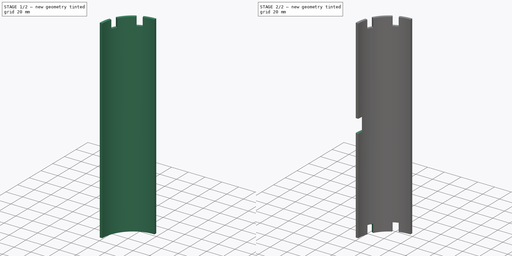
[diagram: build sequence overview — one tinted view per stage of 2, left to right]
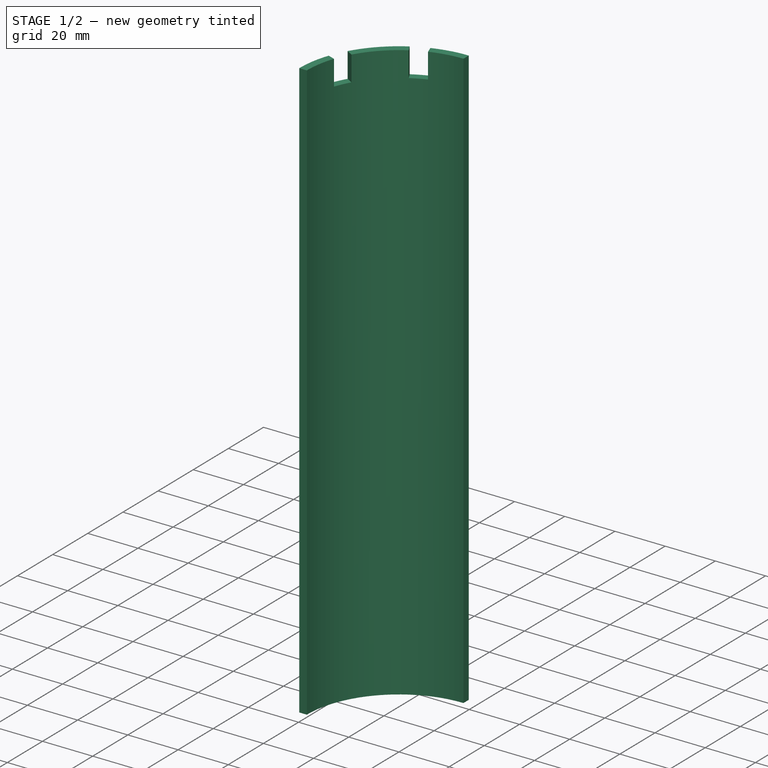
[diagram: stage 1 of 2 — iso view after this stage's code; geometry added in this stage tinted green]
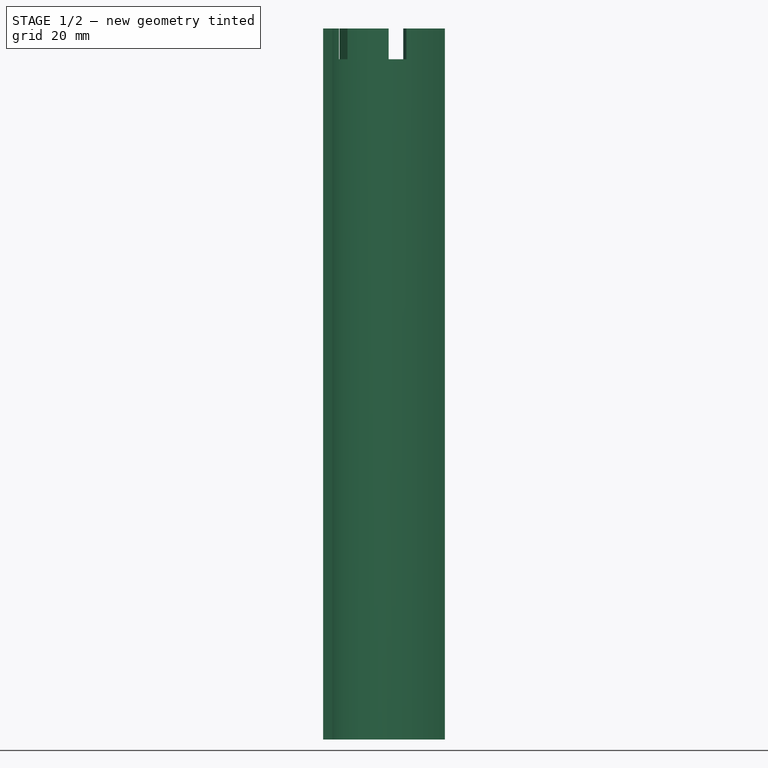
[diagram: stage 1 of 2 — front view after this stage's code; geometry added in this stage tinted green]
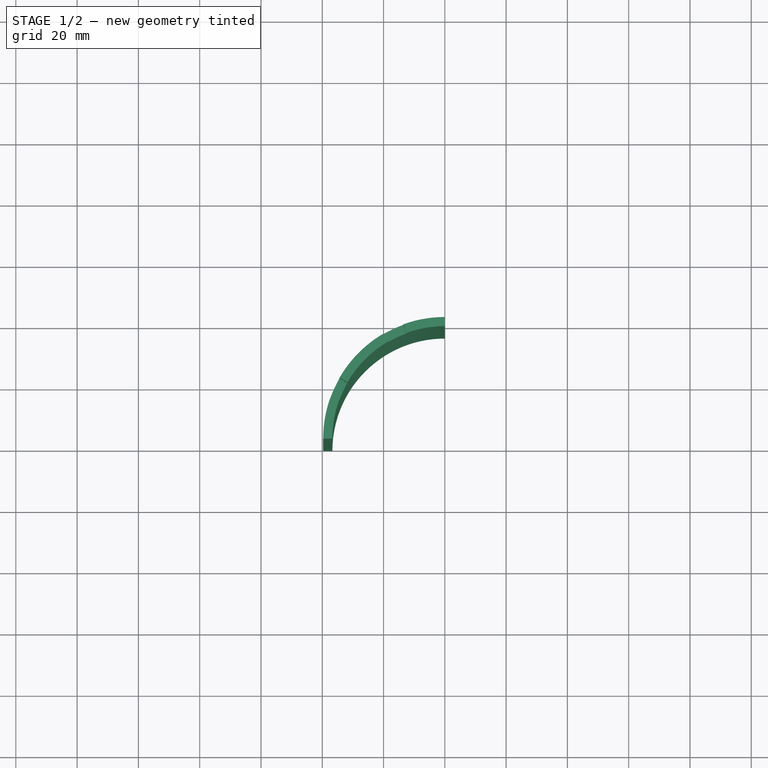
[diagram: stage 1 of 2 — top view after this stage's code; geometry added in this stage tinted green]
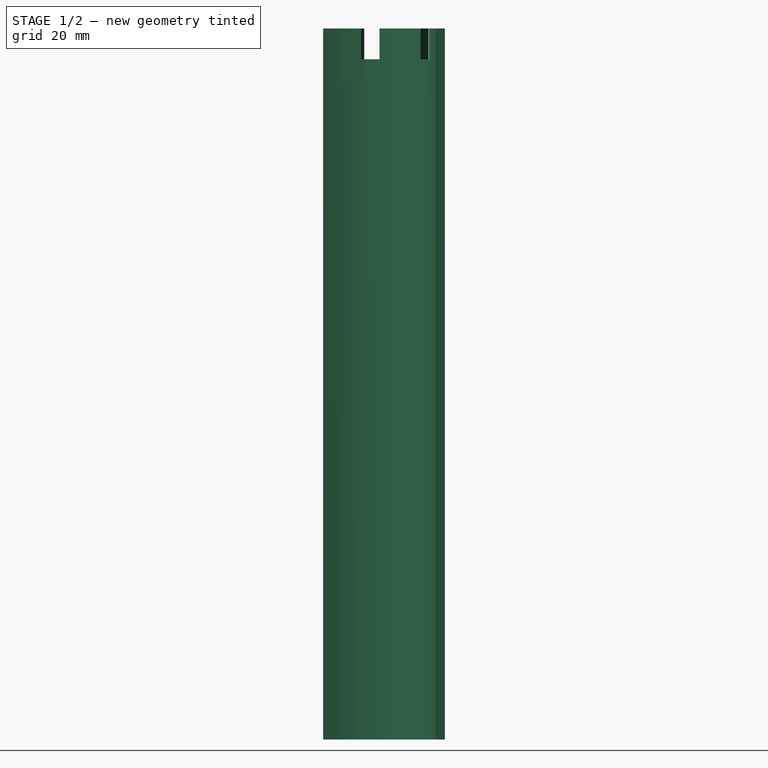
[diagram: stage 1 of 2 — right view after this stage's code; geometry added in this stage tinted green]
FCSTD DOCUMENT  (FreeCAD 1.0R39109 (Git))
Label: cansat_parte1
License: All rights reserved
LicenseURL: https://en.wikipedia.org/wiki/All_rights_reserved
objects: Sketcher::SketchObject×4, PartDesign::Pocket×3, PartDesign::Pad×1, PartDesign::Body×1
note: 21 computed .brp shape members not serialized (recipe doc carries the construction recipe); baked Part::Feature solids carry a one-line shape summary decoded from their .brp

FEATURE [Sketcher::SketchObject] Sketch
  ArcFitTolerance = 1e-06
  AttachmentSupport = -> [XY_Plane]
  FullyConstrained = false
  MakeInternals = false
  MapMode = 5
  sketch-geometry (4):
    g0: ArcOfCircle CenterX=0 CenterY=0 CenterZ=0 NormalX=0 NormalY=0 NormalZ=1 AngleXU=0 Radius=36.7 StartAngle=1.5708 EndAngle=3.14159
    g1: ArcOfCircle CenterX=0 CenterY=0 CenterZ=0 NormalX=0 NormalY=0 NormalZ=1 AngleXU=0 Radius=39.7 StartAngle=1.5708 EndAngle=3.14159
    g2: LineSegment StartX=2.2e-15 StartY=36.7 StartZ=0 EndX=2.4e-15 EndY=39.7 EndZ=0
    g3: LineSegment StartX=-39.7 StartY=4.9e-15 StartZ=0 EndX=-36.7 EndY=4.5e-15 EndZ=0
  constraints (6):
    c: Diameter(g0) = 73.4
    c: Diameter(g1) = 79.4
    c: Coincident(g0,g3)
    c: Coincident(g0,g2)
    c: Coincident(g1,g3)
    c: Coincident(g1,g2)
FEATURE [PartDesign::Pad] Pad
  Direction = (0,0,1)
  Length = 232
  Length2 = 10
  Profile = -> Sketch
  ReferenceAxis = -> Sketch [N_Axis]
  Refine = true
  Suppressed = false
  Type = 0
FEATURE [Sketcher::SketchObject] Sketch001
  ArcFitTolerance = 1e-06
  AttachmentSupport = -> [Pad]
  FullyConstrained = true
  MakeInternals = false
  MapMode = 5
  Placement = pos=(0,0,232) rot=(0,0,1;0rad)
  sketch-geometry (8):
    g0: LineSegment StartX=-34.5462 StartY=12.3874 StartZ=0 EndX=-37.3653 EndY=13.4135 EndZ=0
    g1: LineSegment StartX=-34.3734 StartY=19.8635 StartZ=0 EndX=-31.7753 EndY=18.3635 EndZ=0
    g2: ArcOfCircle CenterX=0 CenterY=0 CenterZ=0 NormalX=0 NormalY=0 NormalZ=1 AngleXU=0 Radius=39.7 StartAngle=2.6176 EndAngle=2.79694
    g3: ArcOfCircle CenterX=0 CenterY=0 CenterZ=0 NormalX=0 NormalY=0 NormalZ=1 AngleXU=0 Radius=36.7 StartAngle=1.91986 EndAngle=2.09414
    g4: LineSegment StartX=-18.3419 StartY=31.7878 StartZ=0 EndX=-19.8419 EndY=34.3859 EndZ=0
    g5: LineSegment StartX=-13.578 StartY=37.3059 StartZ=0 EndX=-12.5519 EndY=34.4868 EndZ=0
    g6: ArcOfCircle CenterX=0 CenterY=0 CenterZ=0 NormalX=0 NormalY=0 NormalZ=1 AngleXU=0 Radius=36.7 StartAngle=2.61757 EndAngle=2.7973
    g7: ArcOfCircle CenterX=0 CenterY=0 CenterZ=0 NormalX=0 NormalY=0 NormalZ=1 AngleXU=0 Radius=39.7 StartAngle=1.91986 EndAngle=2.09416
  constraints (26):
    c: Angle(g-1,g0) = 2.79253
    c: Angle(g-1,g1) = 2.61799
    c: Coincident(g2,g-1)
    c: Diameter(g2) = 79.4
    c: Coincident(g3,g-1)
    c: Diameter(g3) = 73.4
    c: PointOnObject(g1,g6)
    c: Angle(g-1,g4) = 2.0944
    c: Angle(g-1,g5) = 1.91986
    c: PointOnObject(g5,g7)
    c: Coincident(g7,g4)
    c: Coincident(g2,g1)
    c: Equal(g3,g6)
    c: Coincident(g3,g4)
    c: PointOnObject(g6,g1)
    c: Coincident(g3,g6)
    c: Coincident(g3,g5)
    c: Equal(g2,g7)
    c: PointOnObject(g7,g5)
    c: Coincident(g2,g7)
    c: Coincident(g2,g0)
    c: Coincident(g6,g0)
    c: DistanceY(g0,g1) = 6.45
    c: DistanceY(g4,g5) = 2.92
    c: DistanceX(g0,g1) = 5.59
    c: DistanceX(g4,g3) = 7.29
FEATURE [Sketcher::SketchObject] Sketch002
  ArcFitTolerance = 1e-06
  AttachmentSupport = -> [Pad]
  FullyConstrained = false
  MakeInternals = false
  MapMode = 5
  Placement = pos=(0,0,0) rot=(1,0,0;3.14159rad)
  sketch-geometry (8):
    g0: ArcOfCircle CenterX=0 CenterY=0 CenterZ=0 NormalX=0 NormalY=0 NormalZ=1 AngleXU=0 Radius=39.7 StartAngle=3.49042 EndAngle=3.66488
    g1: ArcOfCircle CenterX=0 CenterY=0 CenterZ=0 NormalX=0 NormalY=0 NormalZ=1 AngleXU=0 Radius=36.7 StartAngle=3.4904 EndAngle=3.66485
    g2: LineSegment StartX=-34.49 StartY=-12.5431 StartZ=0 EndX=-37.3091 EndY=-13.5692 EndZ=0
    g3: LineSegment StartX=-31.7894 StartY=-18.3392 StartZ=0 EndX=-34.3875 EndY=-19.8392 EndZ=0
    g4: LineSegment StartX=-12.5521 StartY=-34.4867 StartZ=0 EndX=-13.5782 EndY=-37.3058 EndZ=0
    g5: LineSegment StartX=-18.3454 StartY=-31.7858 StartZ=0 EndX=-19.8454 EndY=-34.3839 EndZ=0
    g6: ArcOfCircle CenterX=0 CenterY=0 CenterZ=0 NormalX=0 NormalY=0 NormalZ=1 AngleXU=0 Radius=39.7 StartAngle=4.18892 EndAngle=4.36332
    g7: ArcOfCircle CenterX=0 CenterY=0 CenterZ=0 NormalX=0 NormalY=0 NormalZ=1 AngleXU=0 Radius=36.7 StartAngle=4.18894 EndAngle=4.36332
  constraints (25):
    c: Coincident(g0,g-1)
    c: Diameter(g0) = 79.4
    c: Coincident(g1,g0)
    c: Diameter(g1) = 73.4
    c: Angle(g2,g-1) = 2.79253
    c: Angle(g3,g-1) = 2.61799
    c: Angle(g4,g-1) = 1.91986
    c: Angle(g5,g-1) = 2.0944
    c: PointOnObject(g5,g7)
    c: PointOnObject(g5,g6)
    c: Coincident(g6,g4)
    c: Coincident(g0,g2)
    c: Coincident(g7,g4)
    c: Coincident(g1,g2)
    c: Equal(g0,g6)
    c: Coincident(g0,g3)
    c: PointOnObject(g6,g5)
    c: Coincident(g0,g6)
    c: Equal(g1,g7)
    c: Coincident(g1,g3)
    c: PointOnObject(g7,g5)
    c: Coincident(g1,g7)
    c: DistanceY(g0,g0) = 6.27
    c: DistanceX(g1,g0) = 34.49
    c: DistanceY(g4,g5) = 5.52
FEATURE [PartDesign::Pocket] Pocket
  BaseFeature = -> Pad
  Direction = (0,0,-1)
  Length = 10
  Length2 = 5
  Profile = -> Sketch001
  ReferenceAxis = -> Sketch001 [N_Axis]
  Refine = true
  Suppressed = false
  Type = 0
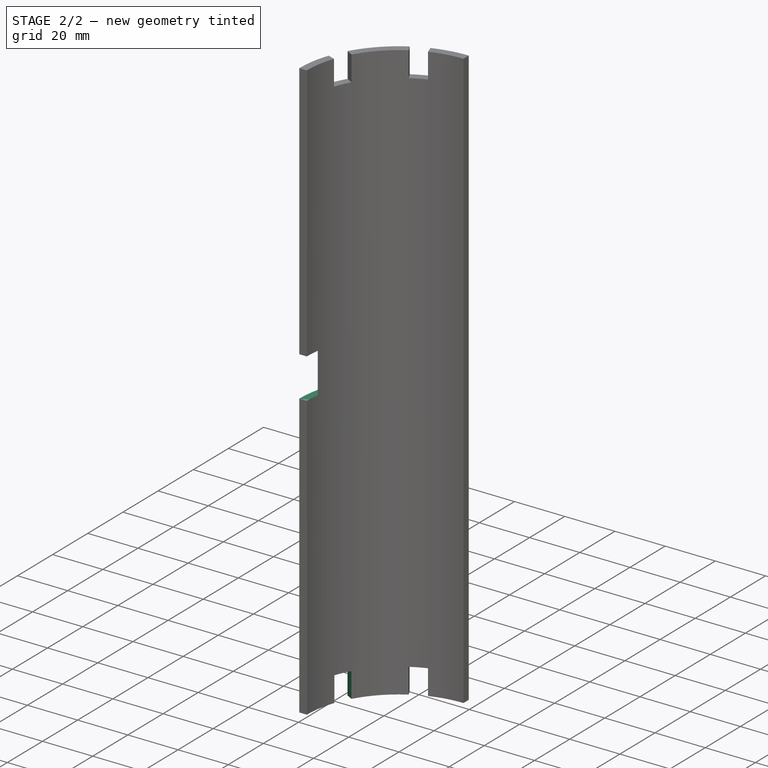
[diagram: stage 2 of 2 — iso view after this stage's code; geometry added in this stage tinted green]
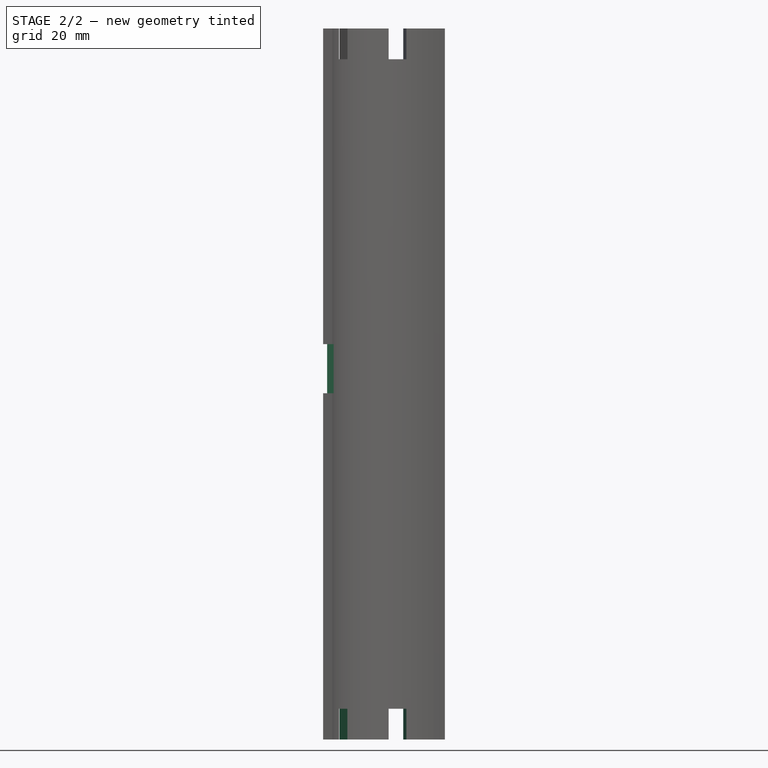
[diagram: stage 2 of 2 — front view after this stage's code; geometry added in this stage tinted green]
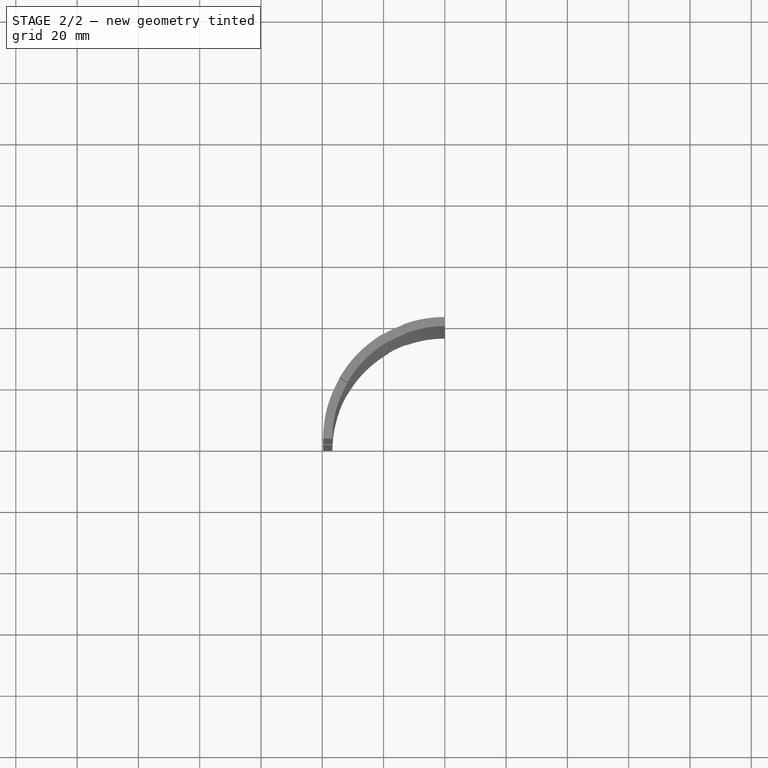
[diagram: stage 2 of 2 — top view after this stage's code; geometry added in this stage tinted green]
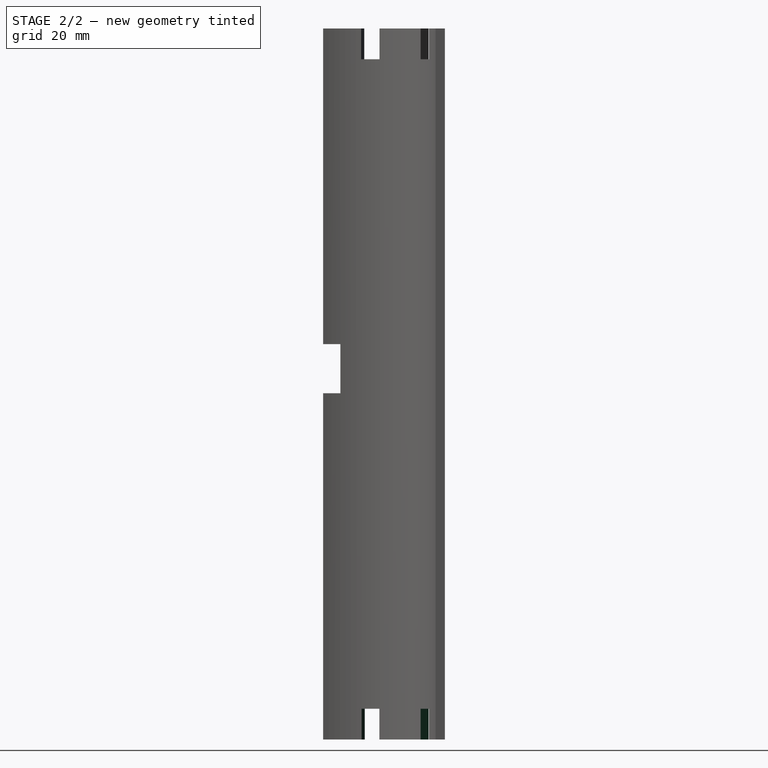
[diagram: stage 2 of 2 — right view after this stage's code; geometry added in this stage tinted green]
FEATURE [PartDesign::Pocket] Pocket001
  BaseFeature = -> Pocket
  Direction = (0,0,1)
  Length = 10
  Length2 = 5
  Profile = -> Sketch002
  ReferenceAxis = -> Sketch002 [N_Axis]
  Refine = true
  Suppressed = false
  Type = 0
FEATURE [Sketcher::SketchObject] Sketch003
  ArcFitTolerance = 1e-06
  AttachmentSupport = -> [Pocket001]
  FullyConstrained = true
  MakeInternals = false
  MapMode = 5
  Placement = pos=(0,1e-16,0) rot=(1,0,0;1.5708rad)
  sketch-geometry (4):
    g0: LineSegment StartX=-40.22 StartY=113 StartZ=0 EndX=-36.27 EndY=113 EndZ=0
    g1: LineSegment StartX=-40.22 StartY=129 StartZ=0 EndX=-36.27 EndY=129 EndZ=0
    g2: LineSegment StartX=-40.22 StartY=129 StartZ=0 EndX=-40.22 EndY=113 EndZ=0
    g3: LineSegment StartX=-36.27 StartY=129 StartZ=0 EndX=-36.27 EndY=113 EndZ=0
  constraints (12):
    c: Horizontal(g0)
    c: Horizontal(g1)
    c: Coincident(g2,g1)
    c: Vertical(g2)
    c: Coincident(g3,g1)
    c: Vertical(g3)
    c: Coincident(g0,g2)
    c: Coincident(g0,g3)
    c: DistanceY(g-1,g0) = 113
    c: DistanceY(g0,g1) = 16
    c: DistanceX(g0,g0) = 3.95
    c: DistanceX(g0,g-1) = 36.27
FEATURE [PartDesign::Pocket] Pocket002
  BaseFeature = -> Pocket001
  Direction = (0,1,-2e-16)
  Length = 10
  Length2 = 5
  Profile = -> Sketch003
  ReferenceAxis = -> Sketch003 [N_Axis]
  Refine = true
  Suppressed = false
  Type = 0
FEATURE [PartDesign::Body] Body  label="Cuerpo"
  AllowCompound = false
  Group = -> [Sketch,Pad,Sketch001,Sketch002,Pocket,Pocket001,Sketch003,Pocket002]
  Origin = -> Origin
  Tip = -> Pocket002
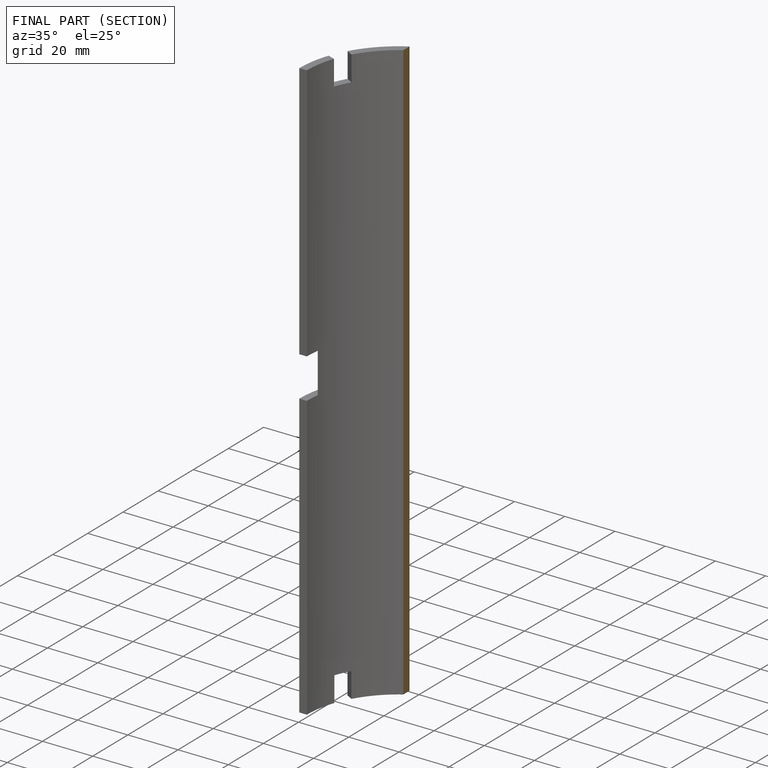
[diagram: finished part — half-section view (interior)]
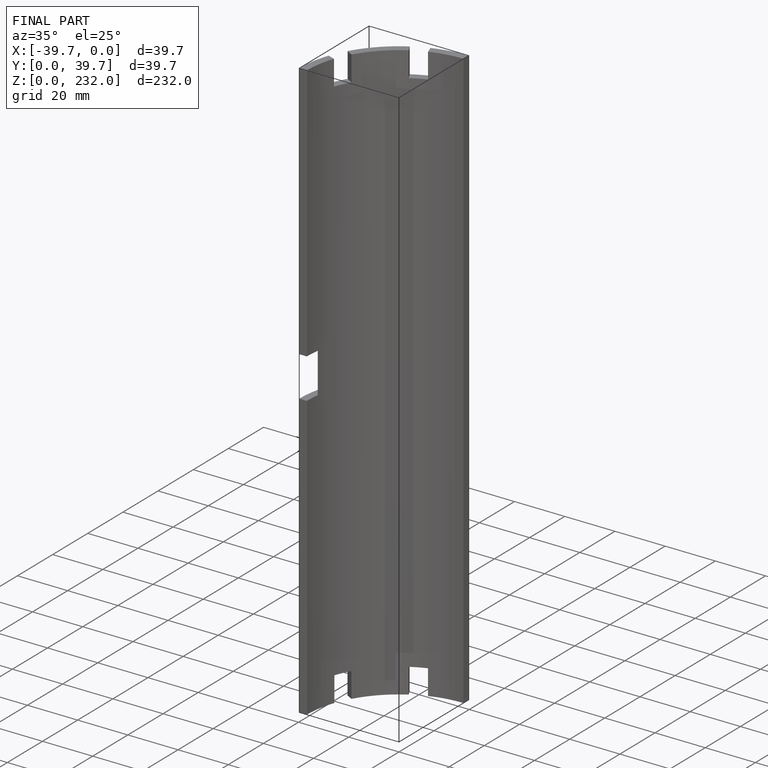
[diagram: finished part — iso view with bounding-box wireframe]
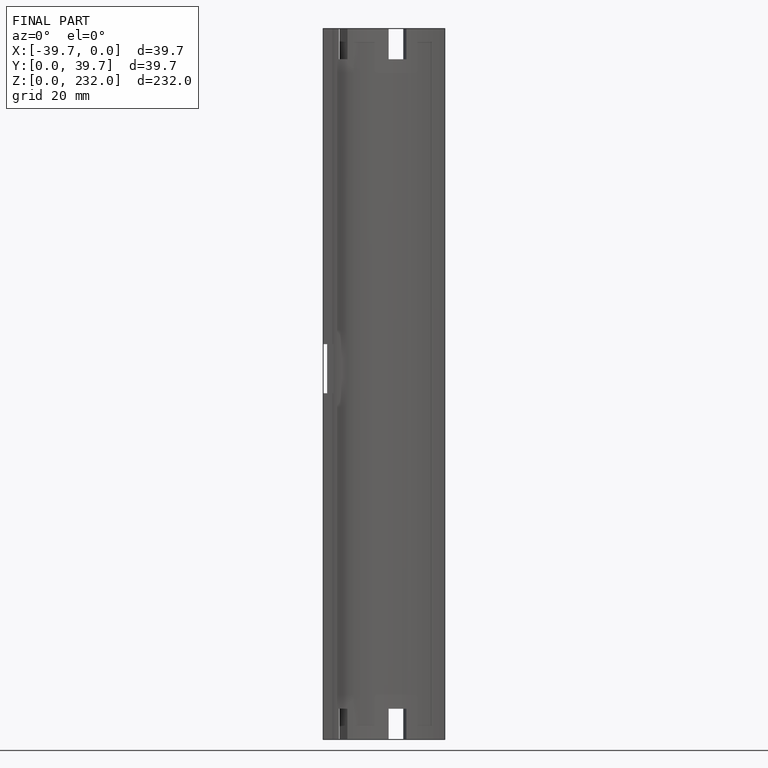
[diagram: finished part — front view with bounding-box wireframe]
